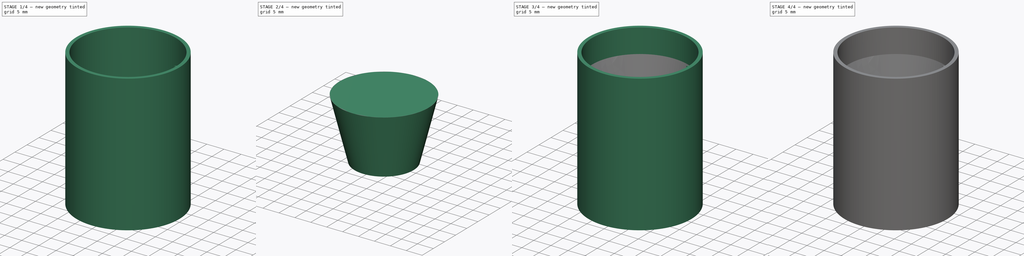
[diagram: build sequence overview — one tinted view per stage of 4, left to right]
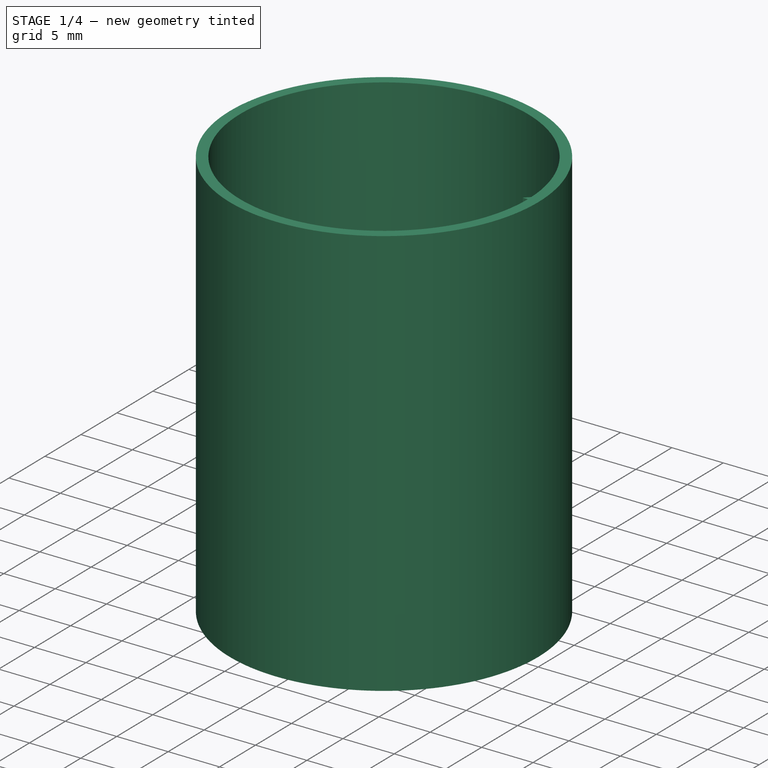
[diagram: stage 1 of 4 — iso view after this stage's code; geometry added in this stage tinted green]
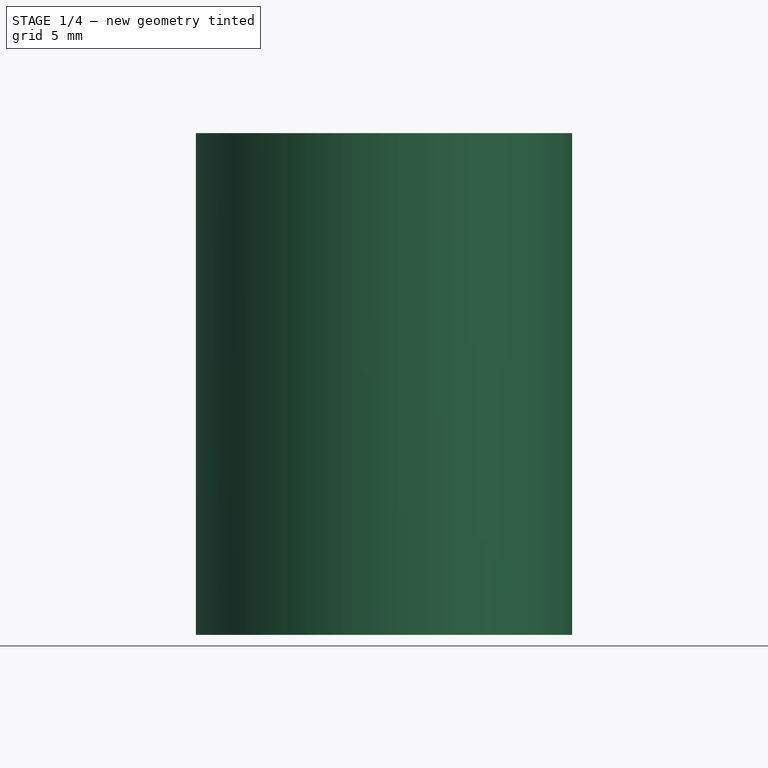
[diagram: stage 1 of 4 — front view after this stage's code; geometry added in this stage tinted green]
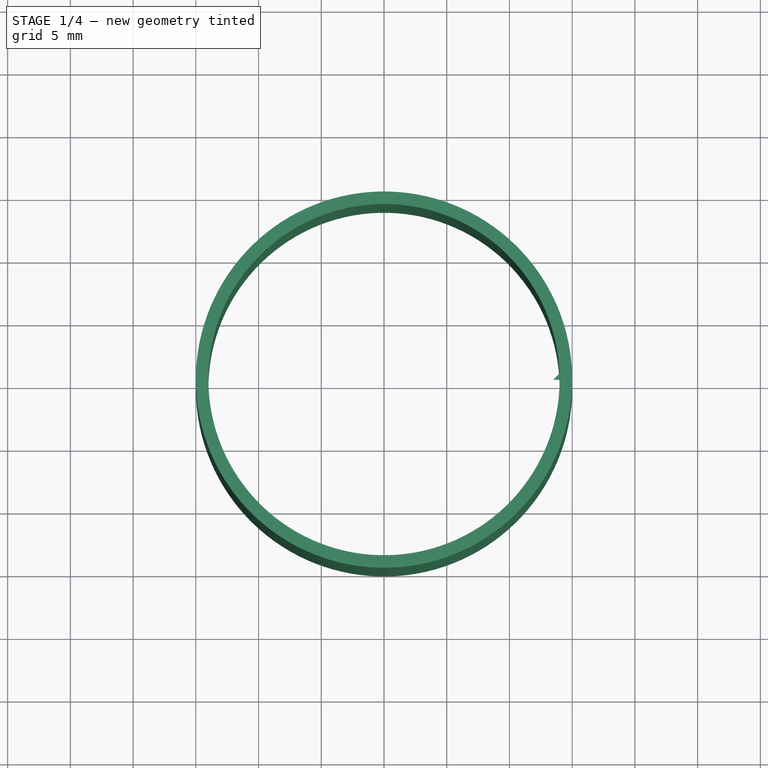
[diagram: stage 1 of 4 — top view after this stage's code; geometry added in this stage tinted green]
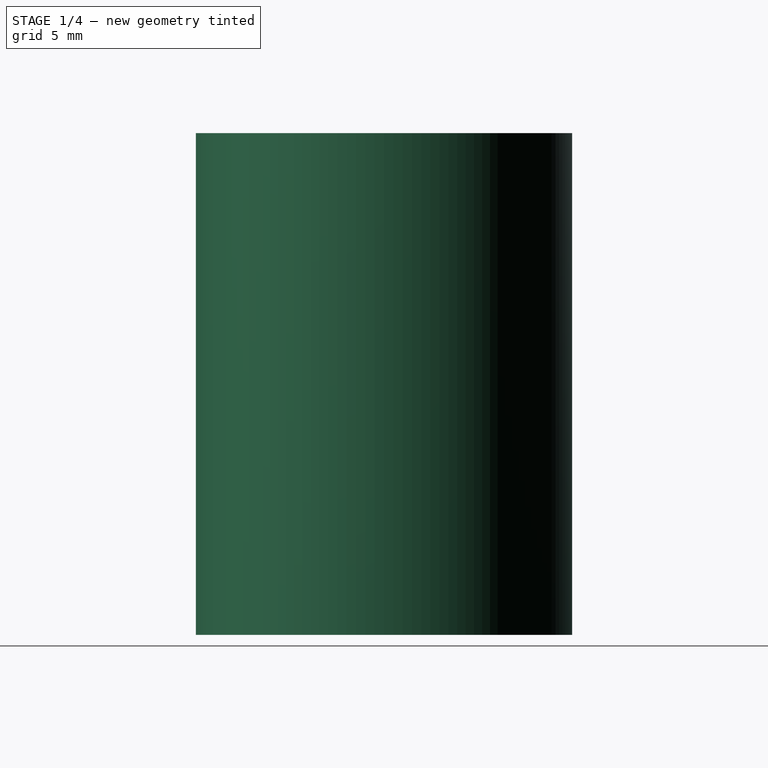
[diagram: stage 1 of 4 — right view after this stage's code; geometry added in this stage tinted green]
FCSTD DOCUMENT  (FreeCAD 0.18.4R)
Label: bottle_to_bottle_v2
License: All rights reserved
LicenseURL: http://en.wikipedia.org/wiki/All_rights_reserved
objects: Sketcher::SketchObject×12, PartDesign::ShapeBinder×12, PartDesign::Plane×7, PartDesign::Pad×3, Part::Loft×2, Part::Sweep×2, Part::Helix×1, Part::Extrusion×1, PartDesign::Pocket×1, PartDesign::Body×1, Part::Cut×1, Part::MultiFuse×1
note: 48 computed .brp shape members not serialized (recipe doc carries the construction recipe); baked Part::Feature solids carry a one-line shape summary decoded from their .brp

FEATURE [Sketcher::SketchObject] Sketch
  MapMode = 5
  Support = -> [XY_Plane]
  sketch-geometry (2):
    g0: Circle CenterX=0 CenterY=0 CenterZ=0 NormalX=0 NormalY=0 NormalZ=1 AngleXU=0 Radius=15
    g1: Circle CenterX=0 CenterY=0 CenterZ=0 NormalX=0 NormalY=0 NormalZ=1 AngleXU=0 Radius=14
  constraints (4):
    c: Coincident(g0,g-1)
    c: Coincident(g1,g0)
    c: Diameter(g0) = 30
    c: Diameter(g1) = 28
FEATURE [PartDesign::Pad] Pad
  Length = 20
  Length2 = 20
  Profile = -> Sketch
  Refine = true
  Type = 4
FEATURE [PartDesign::ShapeBinder] CopyHelix
  Placement = pos=(0,0,-20) rot=(0,0,1;0rad)
  TraceSupport = false
FEATURE [PartDesign::Plane] DatumPlane
  Length = 35.9989
  MapMode = 51
  Placement = pos=(14,-3.4e-15,-17) rot=(-1,0,0;1.5708rad)
  ResizeMode = 0
  Support = -> [CopyHelix,Pad]
  Width = 35.9999
FEATURE [Sketcher::SketchObject] Sketch001
  MapMode = 5
  Placement = pos=(14,-3.4e-15,-17) rot=(-1,0,0;1.5708rad)
  Support = -> [DatumPlane]
  sketch-geometry (5):
    g0: LineSegment StartX=0 StartY=2.5 StartZ=0 EndX=0 EndY=3 EndZ=0
    g1: LineSegment StartX=0 StartY=3 StartZ=0 EndX=-0.5 EndY=2.5 EndZ=0
    g2: LineSegment StartX=-0.5 StartY=2.5 StartZ=0 EndX=0 EndY=2 EndZ=0
    g3: LineSegment StartX=0 StartY=2 StartZ=0 EndX=0 EndY=2.5 EndZ=0
    g4: LineSegment [constr] StartX=0 StartY=0 StartZ=0 EndX=0 EndY=2 EndZ=0
  constraints (14):
    c: Coincident(g0,g1)
    c: Coincident(g1,g2)
    c: Coincident(g2,g3)
    c: Coincident(g3,g0)
    c: Vertical(g0)
    c: Vertical(g3)
    c: Coincident(g4,g-1)
    c: Coincident(g4,g2)
    c: Vertical(g4)
    c: Equal(g0,g3)
    c: Equal(g2,g1)
    c: Perpendicular(g1,g2)
    c: DistanceY(g-1,g2) = 2
    c: DistanceY(g2,g0) = 1
FEATURE [PartDesign::ShapeBinder] CopyHelix001
  Placement = pos=(0,0,-20) rot=(0,0,1;0rad)
  TraceSupport = false
FEATURE [PartDesign::ShapeBinder] CopyHelix002
  Placement = pos=(0,0,-20) rot=(0,0,1;0rad)
  TraceSupport = false
FEATURE [Part::Helix] Helix
  Angle = 0
  AttacherType = Attacher::AttachEngine3D
  Height = 39
  LocalCoord = 0
  Pitch = 3
  Placement = pos=(0,0,-20) rot=(0,0,1;0rad)
  Radius = 14
  Style = 1
FEATURE [PartDesign::Plane] DatumPlane001
  AttachmentOffset = pos=(0,0,-0.5) rot=(0,0,1;0rad)
  Length = 35.9989
  MapMode = 5
  Placement = pos=(0,0,19.5) rot=(0,0,1;0rad)
  ResizeMode = 0
  Support = -> [Pad]
  Width = 35.9999
FEATURE [Sketcher::SketchObject] Sketch002
  ExternalGeometry = -> [Sketch001]
  MapMode = 5
  Placement = pos=(0,0,19.5) rot=(0,0,1;0rad)
  Support = -> [DatumPlane001]
  sketch-geometry (3):
    g0: LineSegment StartX=13.5 StartY=-7e-16 StartZ=0 EndX=14 EndY=0 EndZ=0
    g1: LineSegment StartX=14 StartY=0 StartZ=0 EndX=14 EndY=0.5 EndZ=0
    g2: LineSegment StartX=14 StartY=0.5 StartZ=0 EndX=13.5 EndY=-7e-16 EndZ=0
  constraints (8):
    c: Coincident(g0,g-3)
    c: PointOnObject(g0,g-1)
    c: Coincident(g0,g1)
    c: Vertical(g1)
    c: Coincident(g1,g2)
    c: Coincident(g2,g0)
    c: Equal(g1,g0)
    c: DistanceX(g0,g0) = 0.5
FEATURE [PartDesign::Pad] Pad001
  BaseFeature = -> Pad
  Length = 0.5
  Length2 = 100
  Profile = -> Sketch002
  Refine = true
  Type = 0
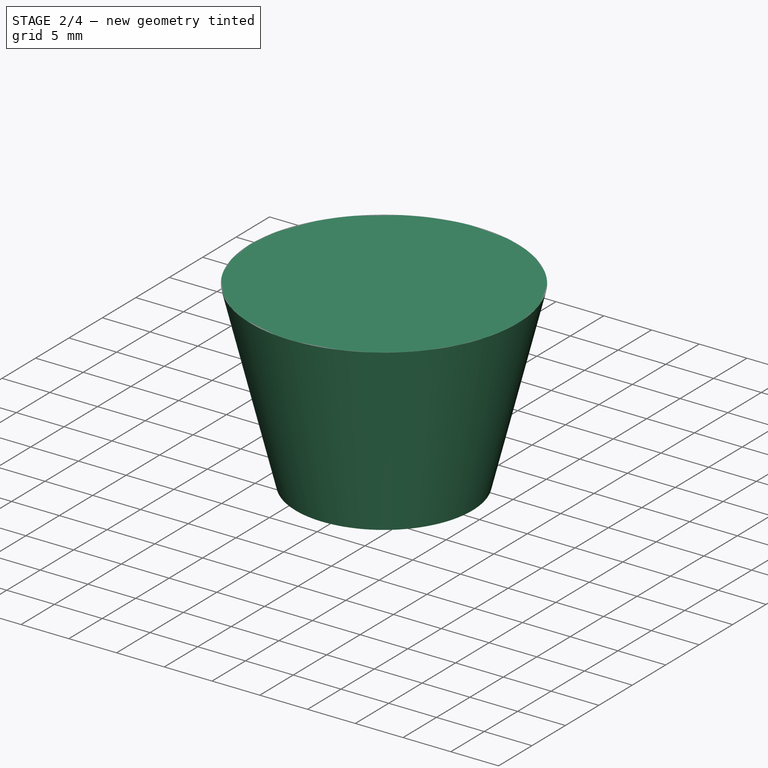
[diagram: stage 2 of 4 — iso view after this stage's code; geometry added in this stage tinted green]
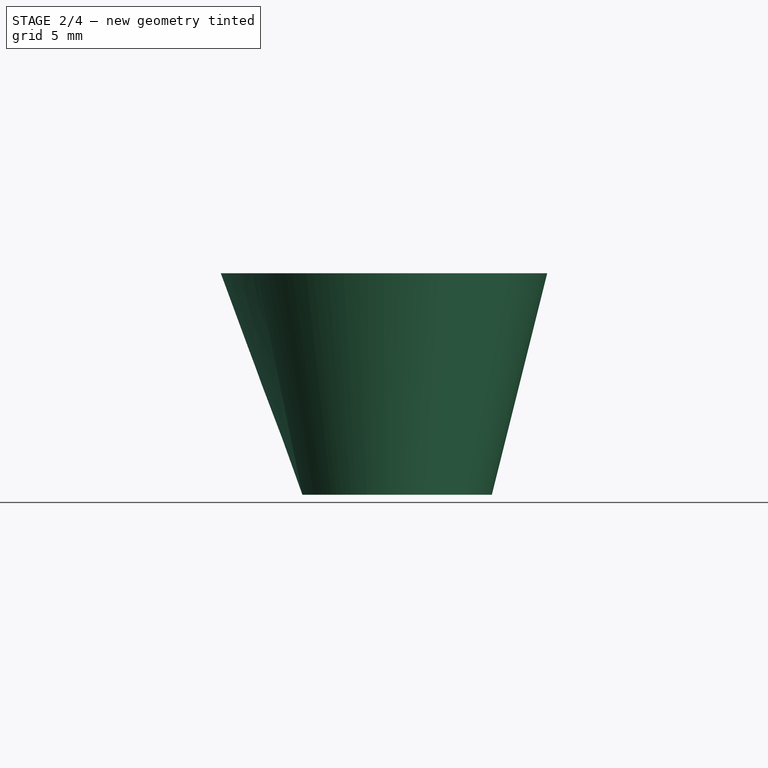
[diagram: stage 2 of 4 — front view after this stage's code; geometry added in this stage tinted green]
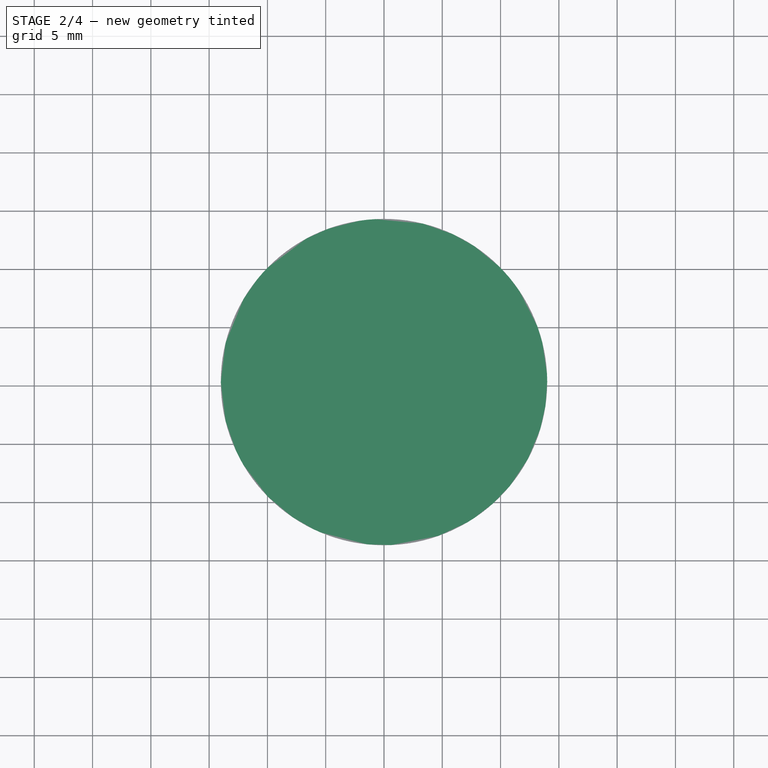
[diagram: stage 2 of 4 — top view after this stage's code; geometry added in this stage tinted green]
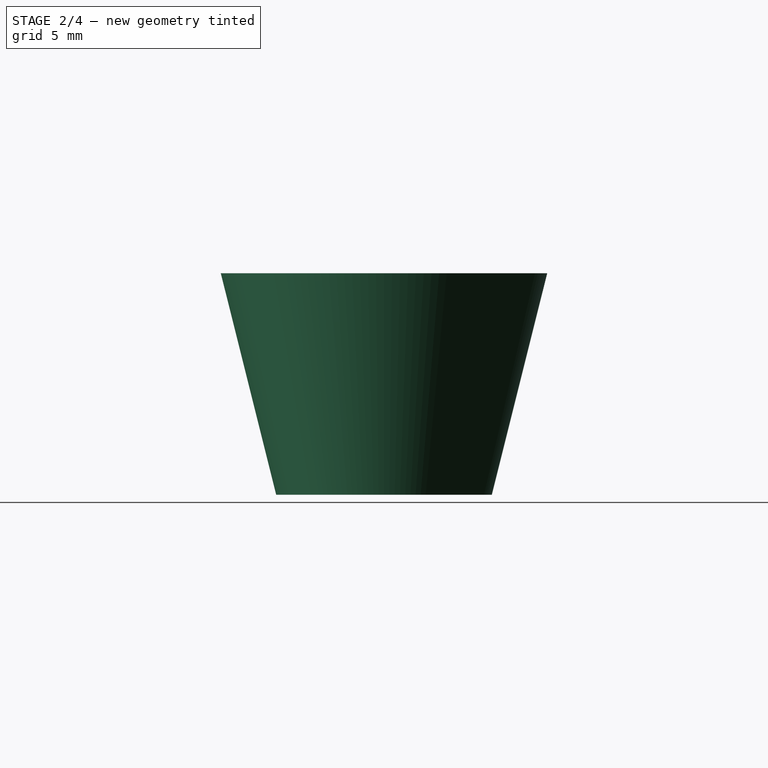
[diagram: stage 2 of 4 — right view after this stage's code; geometry added in this stage tinted green]
FEATURE [PartDesign::Plane] DatumPlane002
  AttachmentOffset = pos=(0,0,-0.5) rot=(0,0,1;0rad)
  Length = 35.9989
  MapMode = 5
  Placement = pos=(0,0,-19.5) rot=(1,0,0;3.14159rad)
  ResizeMode = 0
  Support = -> [Pad001]
  Width = 35.9999
FEATURE [Sketcher::SketchObject] Sketch003
  ExternalGeometry = -> [Sketch001]
  MapMode = 5
  Placement = pos=(0,0,-19.5) rot=(1,0,0;3.14159rad)
  Support = -> [DatumPlane002]
  sketch-geometry (3):
    g0: LineSegment StartX=13.5 StartY=7e-16 StartZ=0 EndX=14 EndY=1e-16 EndZ=0
    g1: LineSegment StartX=14 StartY=1e-16 StartZ=0 EndX=14 EndY=0.5 EndZ=0
    g2: LineSegment StartX=14 StartY=0.5 StartZ=0 EndX=13.5 EndY=7e-16 EndZ=0
  constraints (7):
    c: Coincident(g0,g-3)
    c: Coincident(g0,g-4)
    c: Coincident(g0,g1)
    c: Vertical(g1)
    c: Coincident(g1,g2)
    c: Coincident(g2,g0)
    c: Equal(g1,g0)
FEATURE [PartDesign::Pad] Pad002
  BaseFeature = -> Pad001
  Length = 0.5
  Length2 = 100
  Profile = -> Sketch003
  Refine = true
  Type = 0
FEATURE [Part::Sweep] Sweep001
  Frenet = true
  Sections = -> [Sketch001]
  Solid = false
  Spine = -> Helix [Edge1,Edge2,Edge3,Edge4,Edge5,Edge6,Edge7]
  Transition = 1
FEATURE [PartDesign::ShapeBinder] CopyHelix003
  Placement = pos=(0,0,-20) rot=(0,0,1;0rad)
  TraceSupport = false
FEATURE [PartDesign::ShapeBinder] CopyHelix004
  Placement = pos=(0,0,-20) rot=(0,0,1;0rad)
  TraceSupport = false
FEATURE [PartDesign::Plane] DatumPlane006
  Length = 35.8981
  MapMode = 51
  Placement = pos=(14,5.49e-14,19) rot=(-1,0,0;1.5708rad)
  ResizeMode = 0
  Support = -> [CopyHelix003,CopyHelix004]
  Width = 34.8991
FEATURE [Sketcher::SketchObject] Sketch011
  MapMode = 5
  Placement = pos=(14,5.49e-14,19) rot=(-1,0,0;1.5708rad)
  Support = -> [DatumPlane006]
  sketch-geometry (3):
    g0: LineSegment StartX=0 StartY=-1 StartZ=0 EndX=-0.5 EndY=-0.5 EndZ=0
    g1: LineSegment StartX=-0.5 StartY=-0.5 StartZ=0 EndX=0 EndY=-1e-16 EndZ=0
    g2: LineSegment StartX=0 StartY=0 StartZ=0 EndX=0 EndY=-1 EndZ=0
  constraints (8):
    c: Coincident(g2,g0)
    c: Coincident(g2,g-1)
    c: Coincident(g1,g2)
    c: Coincident(g1,g0)
    c: Vertical(g2)
    c: Perpendicular(g0,g1)
    c: Equal(g1,g0)
    c: DistanceY(g0,g1) = 1
FEATURE [Part::Sweep] Sweep002
  Frenet = true
  Sections = -> [Sketch011]
  Solid = false
  Spine = -> Helix [Edge13,Edge12,Edge11]
  Transition = 1
FEATURE [PartDesign::ShapeBinder] CopyLoft002
  TraceSupport = false
FEATURE [Sketcher::SketchObject] Sketch012
  MapMode = 5
  Placement = pos=(0,0,13) rot=(0,0,1;0rad)
  Support = -> [CopyLoft002]
  sketch-geometry (1):
    g0: Circle CenterX=0 CenterY=0 CenterZ=0 NormalX=0 NormalY=0 NormalZ=1 AngleXU=0 Radius=14
  constraints (2):
    c: Coincident(g0,g-1)
    c: Diameter(g0) = 28
FEATURE [PartDesign::Body] Body
  Group = -> [Sketch,Pad,DatumPlane,CopyHelix,Sketch001,CopyHelix001,CopyHelix002,DatumPlane001,Sketch002,Pad001,DatumPlane002,Sketch003,Pad002,DatumPlane003,Sketch004,DatumPlane004,Sketch005,DatumPlane005,CopyLoft,CopyLoft001,Sketch007,CopyCut,Sketch008,CopyCut001,Sketch009,CopyExtrude,CopyExtrude001,Sketch010,Pocket,DatumPlane006,CopyHelix003,CopyHelix004,Sketch011,CopyLoft002,Sketch012]
  Origin = -> Origin
  Tip = -> Pocket
FEATURE [Part::Loft] Loft001
  Closed = false
  MaxDegree = 5
  Ruled = false
  Sections = -> [Sketch007,Sketch012]
  Solid = true
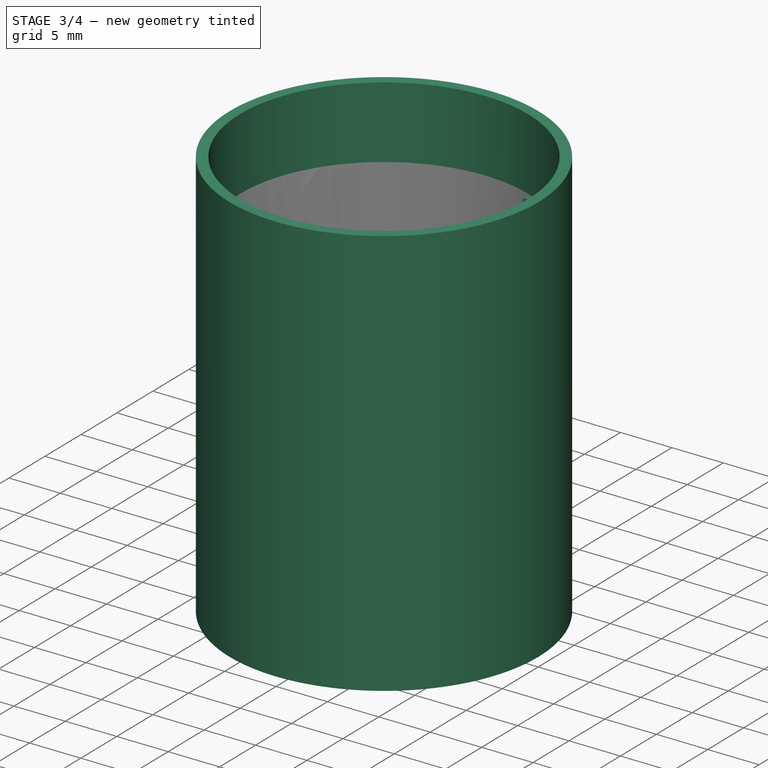
[diagram: stage 3 of 4 — iso view after this stage's code; geometry added in this stage tinted green]
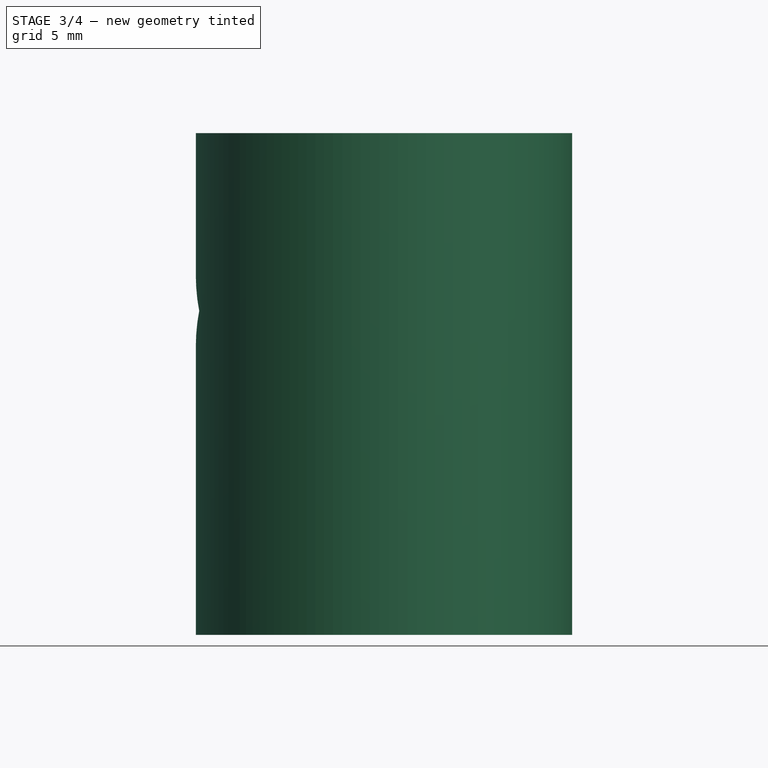
[diagram: stage 3 of 4 — front view after this stage's code; geometry added in this stage tinted green]
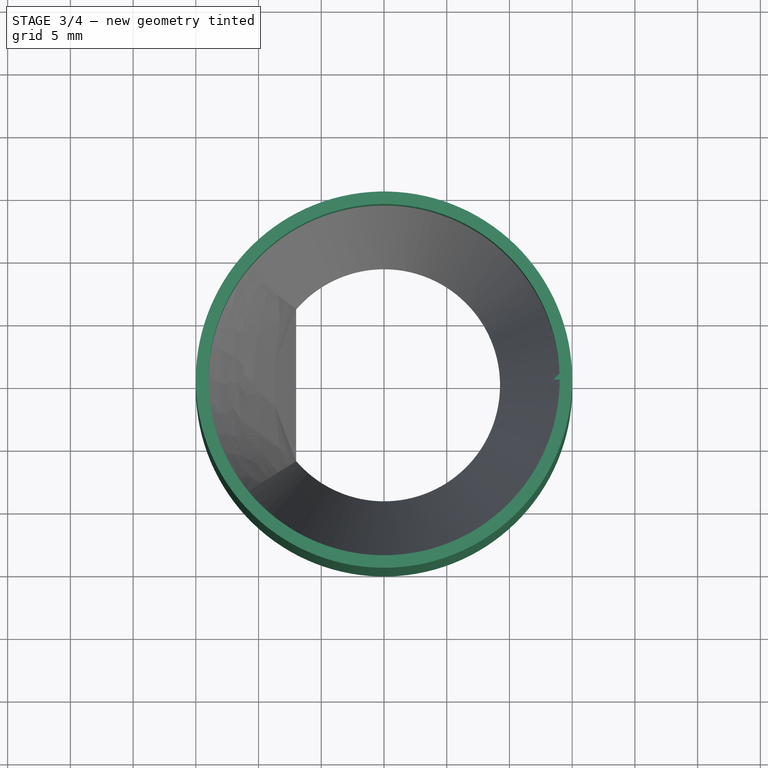
[diagram: stage 3 of 4 — top view after this stage's code; geometry added in this stage tinted green]
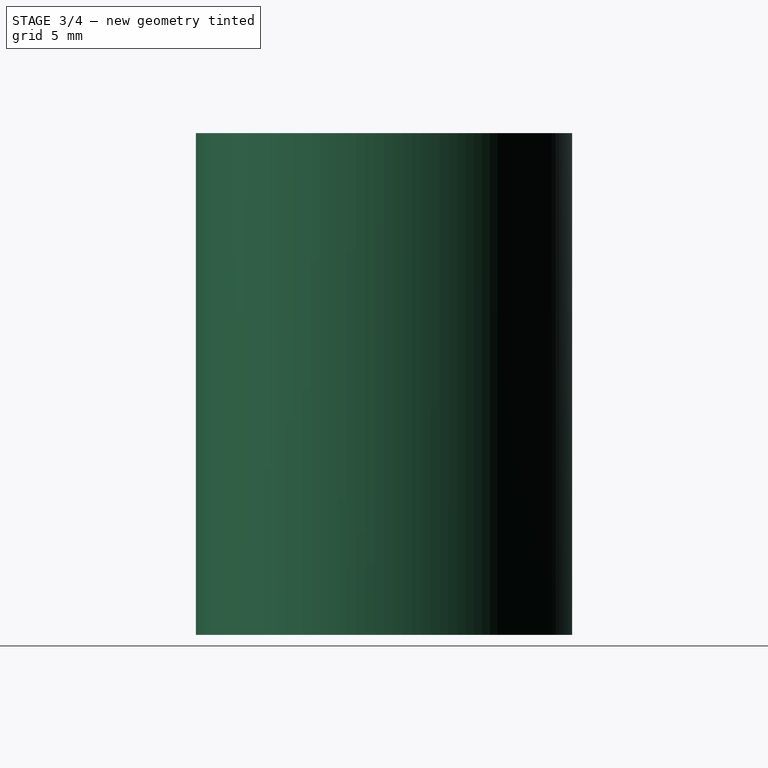
[diagram: stage 3 of 4 — right view after this stage's code; geometry added in this stage tinted green]
FEATURE [PartDesign::Plane] DatumPlane003
  AttachmentOffset = pos=(0,0,-14) rot=(0,0,1;0rad)
  Length = 35.9989
  MapMode = 5
  Placement = pos=(0,0,-6) rot=(1,0,0;3.14159rad)
  ResizeMode = 0
  Support = -> [Pad002]
  Width = 35.9999
FEATURE [Sketcher::SketchObject] Sketch004
  MapMode = 5
  Placement = pos=(0,0,-6) rot=(1,0,0;3.14159rad)
  Support = -> [DatumPlane003]
  sketch-geometry (2):
    g0: ArcOfCircle CenterX=0 CenterY=0 CenterZ=0 NormalX=0 NormalY=0 NormalZ=1 AngleXU=0 Radius=10.25 StartAngle=3.81694 EndAngle=8.74943
    g1: LineSegment StartX=-8 StartY=6.408 StartZ=0 EndX=-8 EndY=-6.408 EndZ=0
  constraints (6):
    c: Coincident(g0,g-1)
    c: Vertical(g1)
    c: Coincident(g1,g0)
    c: Coincident(g0,g1)
    c: DistanceX(g0,g0) = 8
    c: Diameter(g0) = 20.5
FEATURE [PartDesign::Plane] DatumPlane004
  AttachmentOffset = pos=(0,0,-7) rot=(0,0,1;0rad)
  Length = 35.9989
  MapMode = 5
  Placement = pos=(0,0,13) rot=(0,0,1;0rad)
  ResizeMode = 0
  Support = -> [Pad002]
  Width = 35.9999
FEATURE [Sketcher::SketchObject] Sketch005
  ExternalGeometry = -> [Pad002]
  MapMode = 5
  Placement = pos=(0,0,13) rot=(0,0,1;0rad)
  Support = -> [DatumPlane004]
  sketch-geometry (1):
    g0: Circle CenterX=0 CenterY=0 CenterZ=0 NormalX=0 NormalY=0 NormalZ=1 AngleXU=0 Radius=15
  constraints (3):
    c: Diameter(g-3) = 28
    c: Diameter(g0) = 30
    c: Coincident(g0,g-1)
FEATURE [Part::Loft] Loft
  Closed = false
  MaxDegree = 5
  Ruled = false
  Sections = -> [Sketch005,Sketch004]
  Solid = true
FEATURE [PartDesign::ShapeBinder] CopyExtrude
  Placement = pos=(0,0,-14) rot=(0,0,1;0rad)
  TraceSupport = false
FEATURE [PartDesign::ShapeBinder] CopyExtrude001
  TraceSupport = false
FEATURE [Sketcher::SketchObject] Sketch010
  MapMode = 5
  Placement = pos=(-8,-3.3e-15,0) rot=(0.57735,-0.57735,-0.57735;2.0944rad)
  Support = -> [CopyExtrude001]
  sketch-geometry (6):
    g0: LineSegment [constr] StartX=0 StartY=0 StartZ=0 EndX=0 EndY=10 EndZ=0
    g1: LineSegment StartX=0 StartY=3 StartZ=0 EndX=2.82843 EndY=5.82843 EndZ=0
    g2: LineSegment StartX=2.82843 StartY=5.82843 StartZ=0 EndX=0 EndY=8.65685 EndZ=0
    g3: LineSegment StartX=0 StartY=8.65685 StartZ=0 EndX=-2.82843 EndY=5.82843 EndZ=0
    g4: LineSegment StartX=-2.82843 StartY=5.82843 StartZ=0 EndX=0 EndY=3 EndZ=0
    g5: LineSegment [constr] StartX=0 StartY=8.65685 StartZ=0 EndX=0 EndY=3 EndZ=0
  constraints (17):
    c: Vertical(g0)
    c: DistanceY(g-1,g0) = 10
    c: PointOnObject(g1,g0)
    c: Coincident(g1,g2)
    c: Coincident(g2,g3)
    c: Coincident(g3,g4)
    c: Coincident(g4,g1)
    c: Coincident(g-1,g0)
    c: Perpendicular(g3,g2)
    c: Perpendicular(g4,g1)
    c: Perpendicular(g2,g1)
    c: Equal(g2,g3)
    c: Coincident(g5,g1)
    c: Vertical(g5)
    c: Coincident(g2,g5)
    c: Distance(g1,g1) = 4
    c: DistanceY(g-1,g1) = 3
FEATURE [PartDesign::Pocket] Pocket
  BaseFeature = -> Pad002
  Length = 0
  Length2 = 100
  Profile = -> Sketch010
  Refine = true
  Reversed = true
  Type = 1
FEATURE [Part::Cut] Cut
  Base = -> Loft
  Refine = true
  Tool = -> Loft001
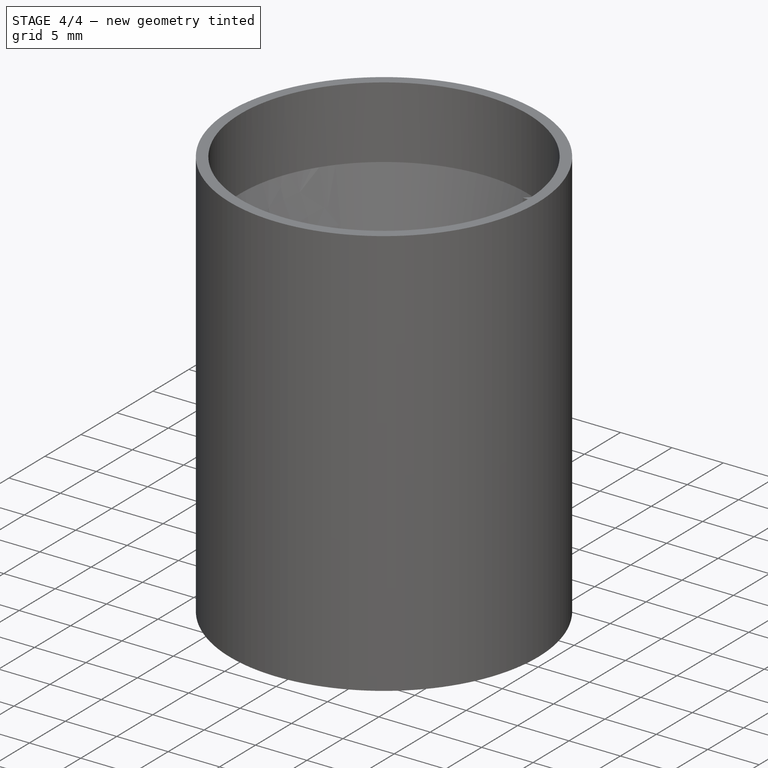
[diagram: stage 4 of 4 — iso view after this stage's code; geometry added in this stage tinted green]
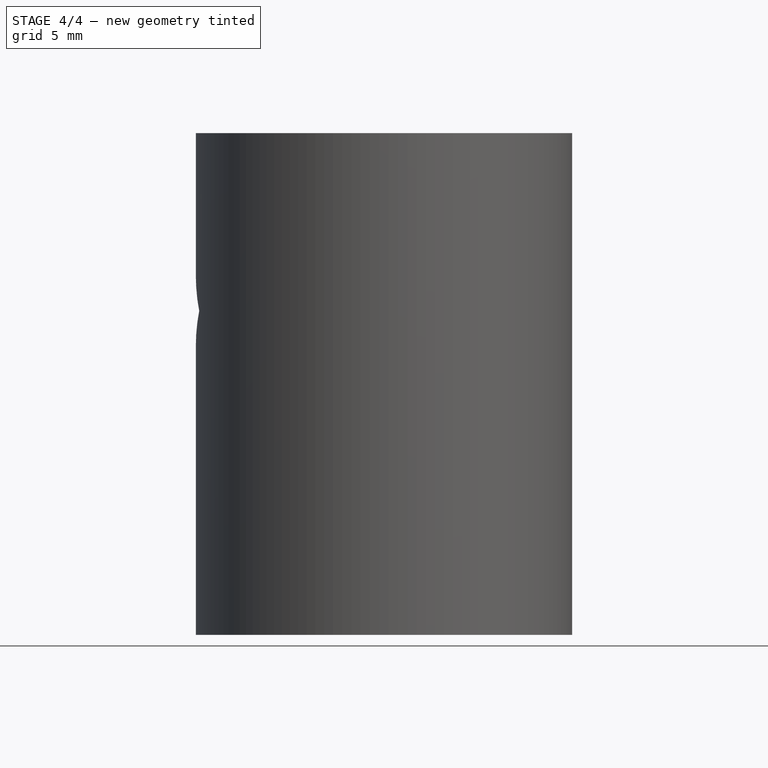
[diagram: stage 4 of 4 — front view after this stage's code; geometry added in this stage tinted green]
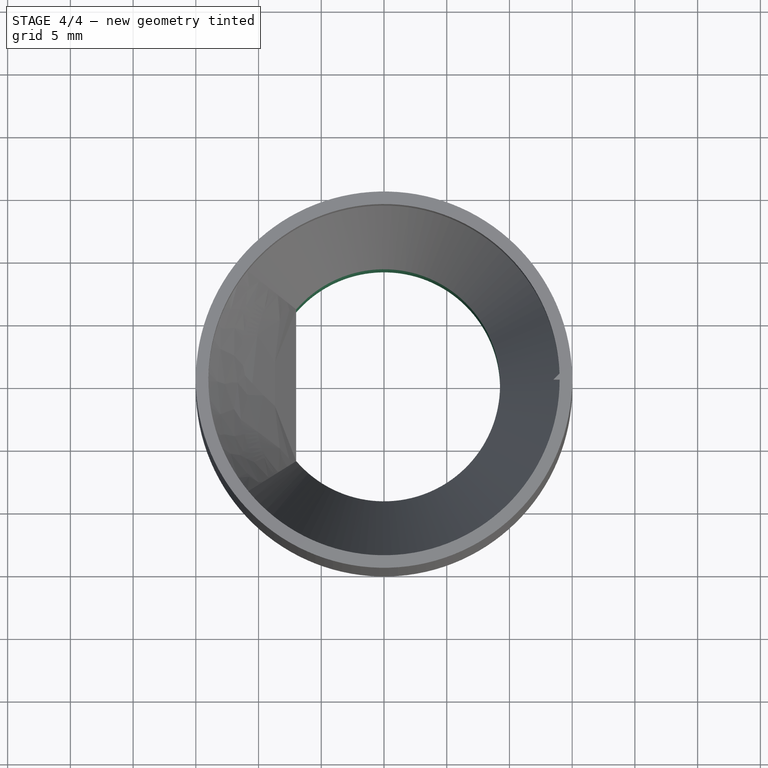
[diagram: stage 4 of 4 — top view after this stage's code; geometry added in this stage tinted green]
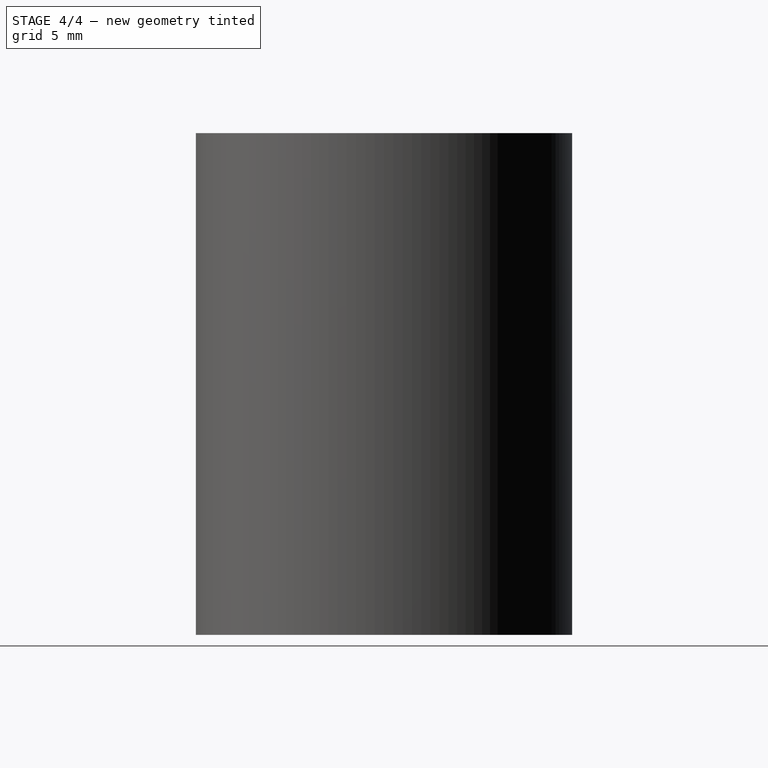
[diagram: stage 4 of 4 — right view after this stage's code; geometry added in this stage tinted green]
FEATURE [PartDesign::ShapeBinder] CopyLoft
  TraceSupport = false
FEATURE [PartDesign::Plane] DatumPlane005
  AttachmentOffset = pos=(0,0,1) rot=(0,0,1;0rad)
  Length = 35.9989
  MapMode = 5
  Placement = pos=(0,0,14) rot=(0,0,1;0rad)
  ResizeMode = 0
  Support = -> [CopyLoft]
  Width = 35.9999
FEATURE [PartDesign::ShapeBinder] CopyLoft001
  TraceSupport = false
FEATURE [Sketcher::SketchObject] Sketch007
  ExternalGeometry = -> [Sketch004]
  MapMode = 5
  Placement = pos=(0,0,-6) rot=(1,0,0;3.14159rad)
  Support = -> [CopyLoft001]
  sketch-geometry (2):
    g0: ArcOfCircle CenterX=0 CenterY=0 CenterZ=0 NormalX=0 NormalY=0 NormalZ=1 AngleXU=0 Radius=9.25 StartAngle=3.85405 EndAngle=8.71232
    g1: LineSegment StartX=-7 StartY=6.04669 StartZ=0 EndX=-7 EndY=-6.04669 EndZ=0
  constraints (7):
    c: Coincident(g0,g-1)
    c: Coincident(g1,g0)
    c: Coincident(g1,g0)
    c: Vertical(g1)
    c: DistanceX(g-4,g0) = 1
    c: Diameter(g-3) = 20.5
    c: Diameter(g0) = 18.5
FEATURE [PartDesign::ShapeBinder] CopyCut
  TraceSupport = false
FEATURE [Sketcher::SketchObject] Sketch008
  MapMode = 5
  Placement = pos=(0,0,-6) rot=(1,0,0;3.14159rad)
  Support = -> [CopyCut]
FEATURE [PartDesign::ShapeBinder] CopyCut001
  TraceSupport = false
FEATURE [Sketcher::SketchObject] Sketch009
  ExternalGeometry = -> [Sketch007,CopyCut]
  MapMode = 5
  Placement = pos=(0,0,-6) rot=(1,0,0;3.14159rad)
  Support = -> [CopyCut001]
  sketch-geometry (4):
    g0: ArcOfCircle CenterX=0 CenterY=0 CenterZ=0 NormalX=0 NormalY=0 NormalZ=1 AngleXU=0 Radius=9.25 StartAngle=3.85405 EndAngle=8.71232
    g1: ArcOfCircle CenterX=0 CenterY=0 CenterZ=0 NormalX=0 NormalY=0 NormalZ=1 AngleXU=0 Radius=10.25 StartAngle=3.81694 EndAngle=8.74943
    g2: LineSegment StartX=-8 StartY=6.408 StartZ=0 EndX=-8 EndY=-6.408 EndZ=0
    g3: LineSegment StartX=-7 StartY=-6.04669 StartZ=0 EndX=-7 EndY=6.04669 EndZ=0
  constraints (10):
    c: Coincident(g0,g-1)
    c: Coincident(g0,g-6)
    c: Coincident(g0,g-6)
    c: Coincident(g1,g0)
    c: Coincident(g1,g-5)
    c: Coincident(g1,g-4)
    c: Coincident(g2,g1)
    c: Coincident(g2,g1)
    c: Coincident(g3,g0)
    c: Coincident(g3,g0)
FEATURE [Part::Extrusion] Extrude
  Base = -> Sketch009
  Dir = (0,0,-1)
  DirMode = 2
  FaceMakerClass = Part::FaceMakerBullseye
  LengthFwd = 14
  LengthRev = 0
  Solid = true
  Symmetric = false
FEATURE [Part::MultiFuse] Fusion
  Refine = true
  Shapes = -> [Cut,Extrude,Body]
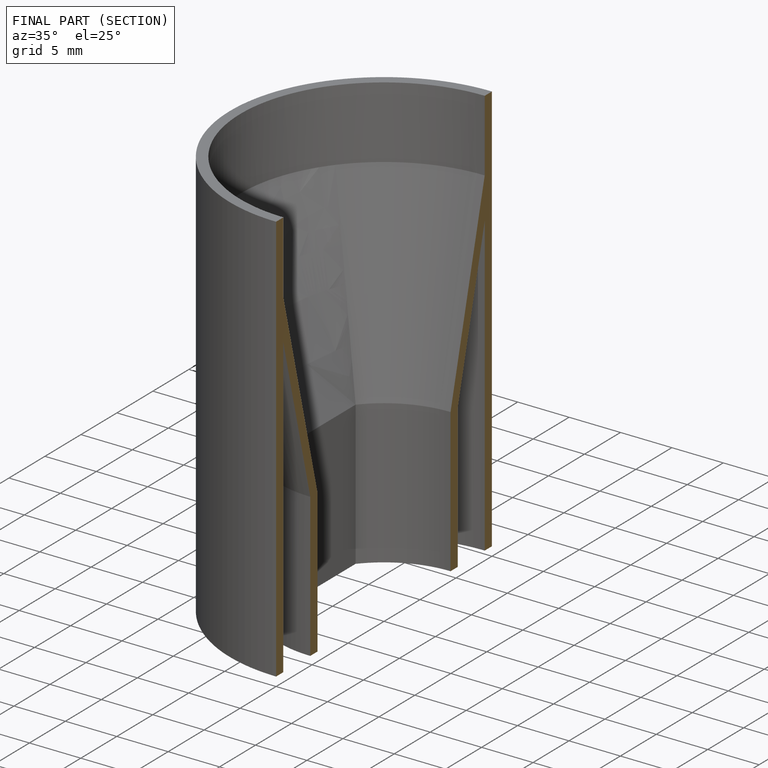
[diagram: finished part — half-section view (interior)]
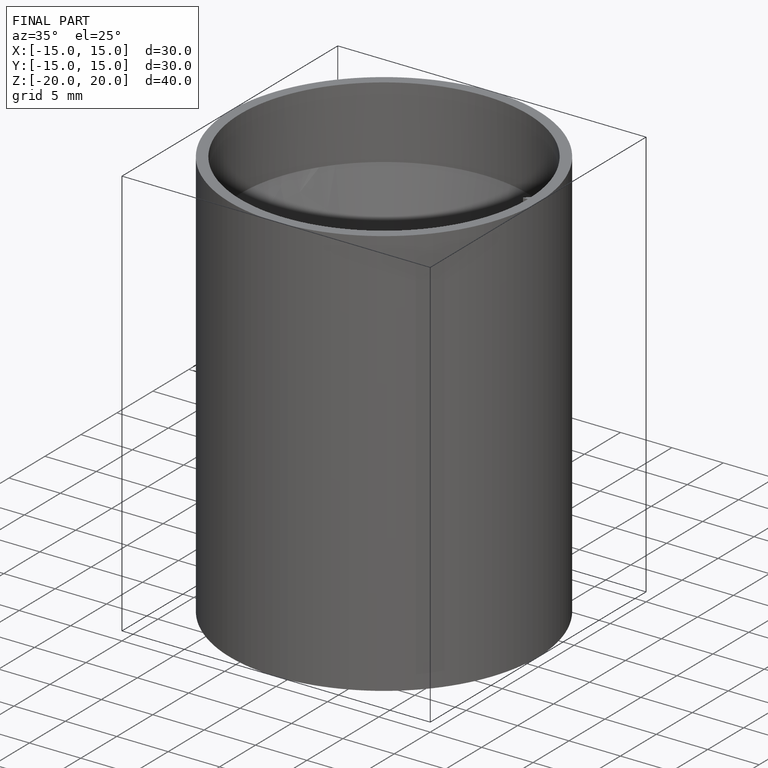
[diagram: finished part — iso view with bounding-box wireframe]
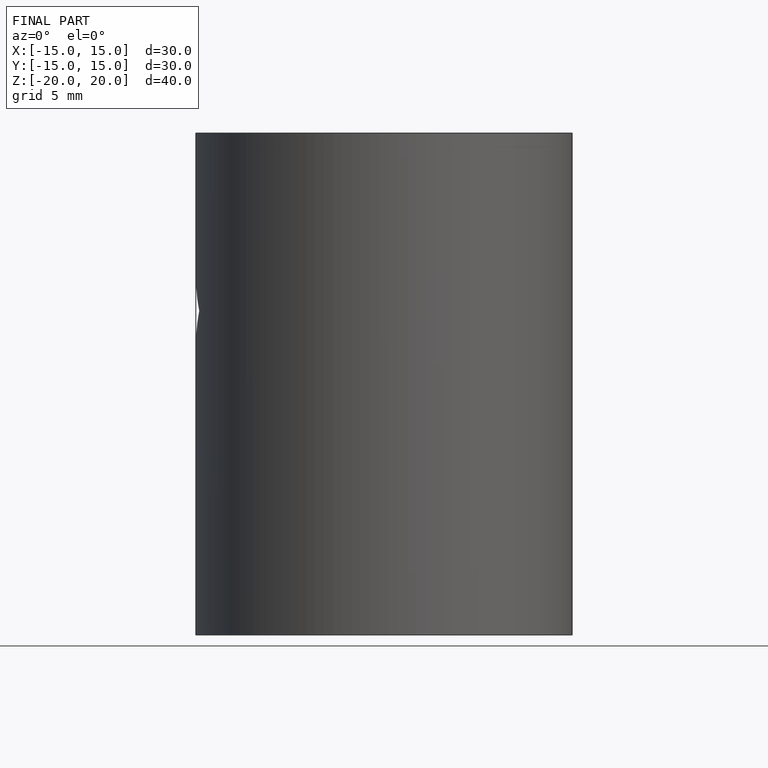
[diagram: finished part — front view with bounding-box wireframe]
